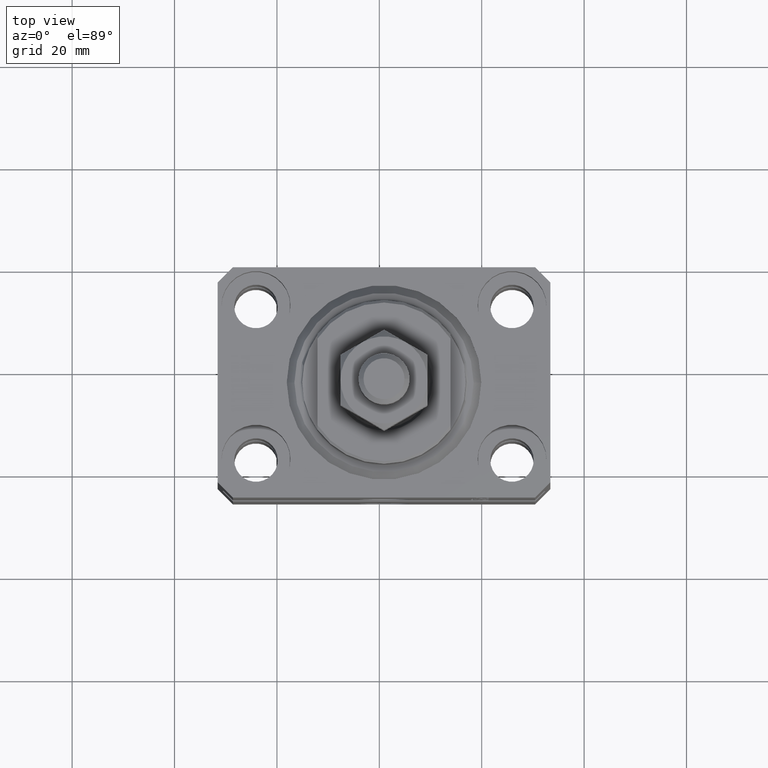
[diagram: clean part render]
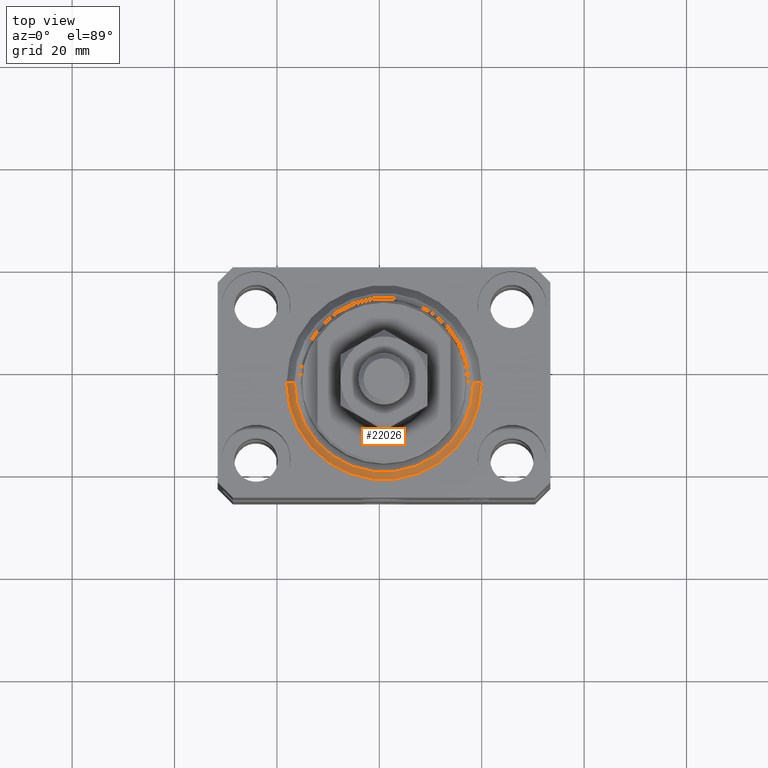
[diagram: same view with one face highlighted and labeled with its STEP entity id]
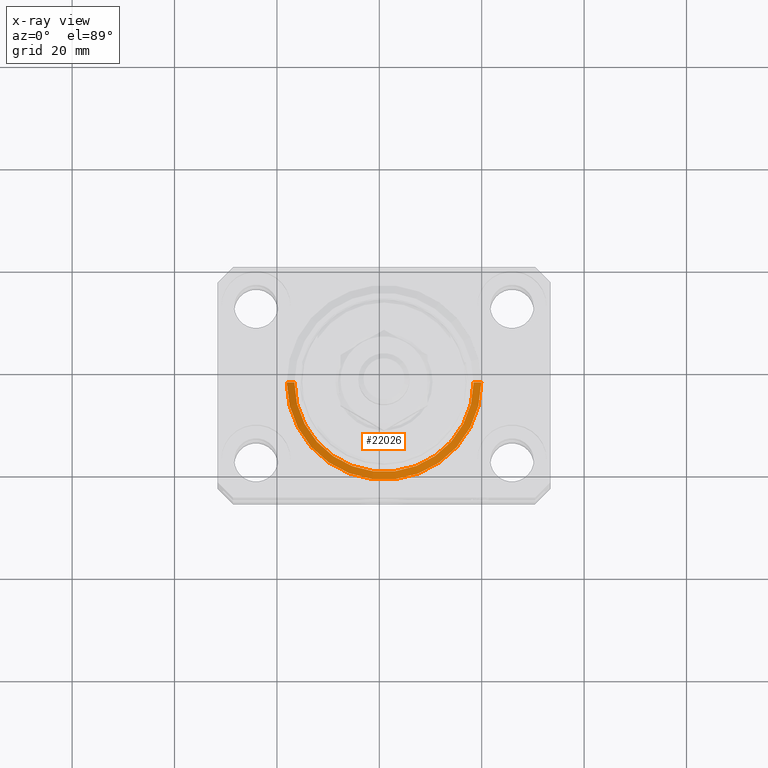
[diagram: x-ray of the same camera — body ghosted, the highlighted face saturated]
A machine part, top view. The second image highlights one B-rep face of the part: STEP entity #22026.
The next image is the same camera in x-ray: the body ghosted, the highlighted face saturated — about 0% of this face is hidden behind the body in this view.
In plain terms, the highlighted conical surface has half-angle 45 deg.
Its self-contained STEP definition (entity closure, byte-faithful):
#1370 = VERTEX_POINT ( 'NONE', #18862 ) ;
#2859 = CARTESIAN_POINT ( 'NONE',  ( 17.49999999999999289, 0.000000000000000000, 0.000000000000000000 ) ) ;
#4918 = ORIENTED_EDGE ( 'NONE', *, *, #34837, .F. ) ;
#5970 = VECTOR ( 'NONE', #8077, 1000.000000000000000 ) ;
#6954 = DIRECTION ( 'NONE',  ( 1.000000000000000000, 0.000000000000000000, 0.000000000000000000 ) ) ;
#7514 = CONICAL_SURFACE ( 'NONE', #29325, 19.00000000000000000, 0.7853981633974492782 ) ;
#7949 = LINE ( 'NONE', #14546, #41987 ) ;
#8077 = DIRECTION ( 'NONE',  ( -0.7071067811865483499, 8.659560562354943952E-17, 0.7071067811865467956 ) ) ;
#11421 = CIRCLE ( 'NONE', #33970, 19.00000000000000000 ) ;
#11878 = DIRECTION ( 'NONE',  ( 1.000000000000000000, 0.000000000000000000, 0.000000000000000000 ) ) ;
#13367 = CARTESIAN_POINT ( 'NONE',  ( -19.00000000000000000, 0.000000000000000000, 1.500000000000004885 ) ) ;
#13473 = VERTEX_POINT ( 'NONE', #34006 ) ;
#14546 = CARTESIAN_POINT ( 'NONE',  ( 19.00000000000000000, 0.000000000000000000, 1.500000000000004885 ) ) ;
#15242 = ORIENTED_EDGE ( 'NONE', *, *, #16091, .T. ) ;
#16091 = EDGE_CURVE ( 'NONE', #43968, #1370, #7949, .T. ) ;
#16764 = CIRCLE ( 'NONE', #22774, 17.49999999999999289 ) ;
#17395 = ORIENTED_EDGE ( 'NONE', *, *, #20882, .F. ) ;
#17457 = FACE_OUTER_BOUND ( 'NONE', #23685, .T. ) ;
#18862 = CARTESIAN_POINT ( 'NONE',  ( 19.00000000000000000, 2.326828918379970970E-15, 1.500000000000004885 ) ) ;
#20882 = EDGE_CURVE ( 'NONE', #13473, #39173, #43852, .T. ) ;
#22026 = ADVANCED_FACE ( 'NONE', ( #17457 ), #7514, .T. ) ;
#22295 = DIRECTION ( 'NONE',  ( 0.7071067811865483499, 0.000000000000000000, 0.7071067811865467956 ) ) ;
#22774 = AXIS2_PLACEMENT_3D ( 'NONE', #46479, #24829, #6954 ) ;
#23685 = EDGE_LOOP ( 'NONE', ( #17395, #26496, #15242, #4918 ) ) ;
#24829 = DIRECTION ( 'NONE',  ( -0.000000000000000000, -0.000000000000000000, -1.000000000000000000 ) ) ;
#26496 = ORIENTED_EDGE ( 'NONE', *, *, #27436, .F. ) ;
#27436 = EDGE_CURVE ( 'NONE', #43968, #13473, #16764, .T. ) ;
#28293 = DIRECTION ( 'NONE',  ( 1.000000000000000000, 0.000000000000000000, 0.000000000000000000 ) ) ;
#29325 = AXIS2_PLACEMENT_3D ( 'NONE', #31816, #46168, #28293 ) ;
#29761 = DIRECTION ( 'NONE',  ( -0.000000000000000000, -0.000000000000000000, 1.000000000000000000 ) ) ;
#31816 = CARTESIAN_POINT ( 'NONE',  ( 0.000000000000000000, 0.000000000000000000, 1.500000000000004885 ) ) ;
#33031 = CARTESIAN_POINT ( 'NONE',  ( -19.00000000000000000, 2.326828918379970970E-15, 1.500000000000004885 ) ) ;
#33970 = AXIS2_PLACEMENT_3D ( 'NONE', #44337, #29761, #11878 ) ;
#34006 = CARTESIAN_POINT ( 'NONE',  ( -17.49999999999999289, 2.234980408443919215E-15, 0.000000000000000000 ) ) ;
#34837 = EDGE_CURVE ( 'NONE', #39173, #1370, #11421, .T. ) ;
#39173 = VERTEX_POINT ( 'NONE', #13367 ) ;
#41987 = VECTOR ( 'NONE', #22295, 1000.000000000000000 ) ;
#43852 = LINE ( 'NONE', #33031, #5970 ) ;
#43968 = VERTEX_POINT ( 'NONE', #2859 ) ;
#44337 = CARTESIAN_POINT ( 'NONE',  ( 0.000000000000000000, 0.000000000000000000, 1.500000000000004885 ) ) ;
#46168 = DIRECTION ( 'NONE',  ( -0.000000000000000000, -0.000000000000000000, 1.000000000000000000 ) ) ;
#46479 = CARTESIAN_POINT ( 'NONE',  ( 0.000000000000000000, 0.000000000000000000, 0.000000000000000000 ) ) ;